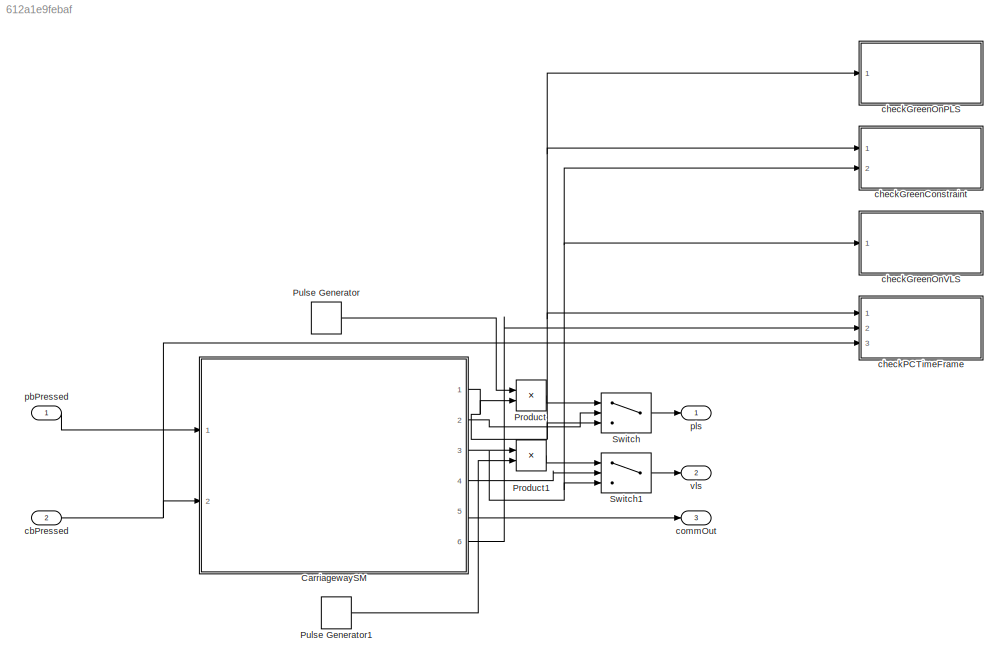
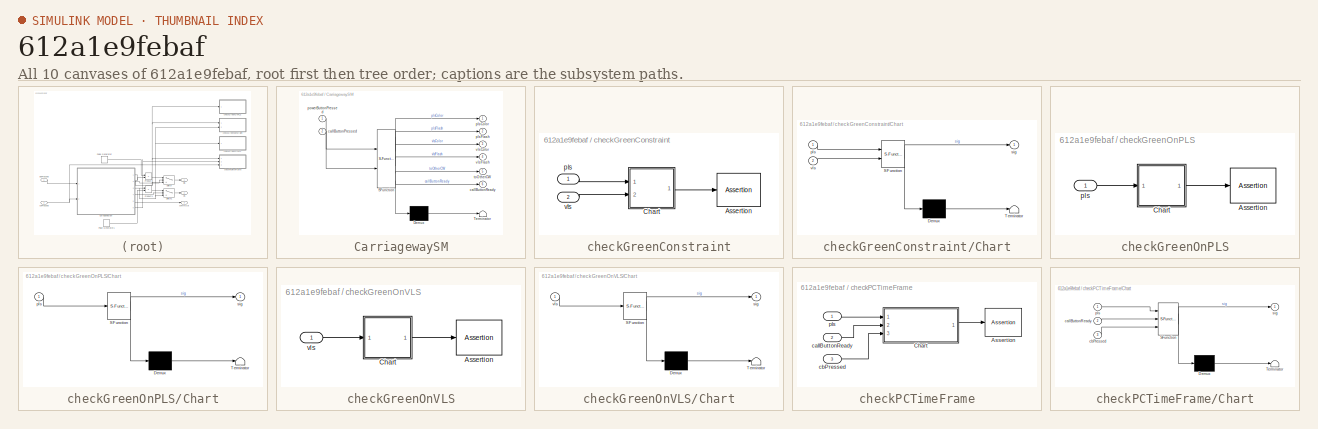
[diagram: thumbnail index - all 10 canvases of the model, root first then tree order]
MODEL slx_612a1e9febaf
KIND model
CONFIG AbsTol = auto
CONFIG EnableMultiTasking = off
CONFIG FixedStep = auto
CONFIG MaxStep = auto
CONFIG MinStep = auto
CONFIG RelTol = 1e-3
CONFIG SampleTimeConstraint = Unconstrained
CONFIG SolverName = FixedStepAuto
CONFIG StartTime = 0.0
CONFIG StopTime = 10.0
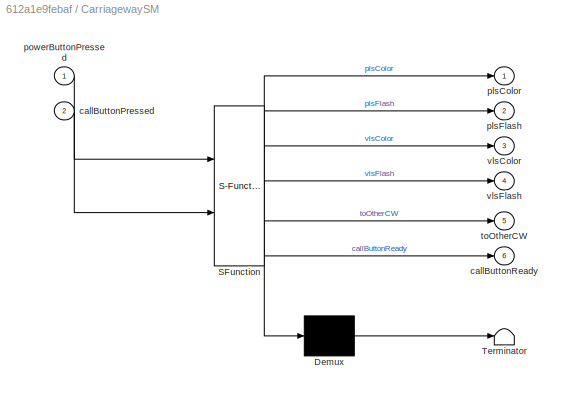
BLOCK [SubSystem] CarriagewaySM
  ErrorFcn = Stateflow.Translate.translate
  PermitHierarchicalResolution = ExplicitOnly
  Ports = [2, 6]
  RequestExecContextInheritance = off
  SFBlockType = Chart
  TreatAsAtomicUnit = on
BLOCK [Demux] CarriagewaySM/ Demux 
  Outputs = 1
  Ports = [1, 1]
BLOCK [S-Function] CarriagewaySM/ SFunction 
  EnableBusSupport = on
  FunctionName = sf_sfun
  PortCounts = [2 7]
  Ports = [2, 7]
  SFcnIsStateOwnerBlock = off
  SFunctionDeploymentMode = off
  Tag = Stateflow S-Function 3
BLOCK [Terminator] CarriagewaySM/ Terminator 
BLOCK [Inport] CarriagewaySM/callButtonPressed
  Port = 2
BLOCK [Outport] CarriagewaySM/callButtonReady
  Port = 6
BLOCK [Outport] CarriagewaySM/plsColor
BLOCK [Outport] CarriagewaySM/plsFlash
  Port = 2
BLOCK [Inport] CarriagewaySM/powerButtonPressed
BLOCK [Outport] CarriagewaySM/toOtherCW
  Port = 5
BLOCK [Outport] CarriagewaySM/vlsColor
  Port = 3
BLOCK [Outport] CarriagewaySM/vlsFlash
  Port = 4
BLOCK [Product] Product
  Ports = [2, 1]
BLOCK [Product] Product1
  Ports = [2, 1]
BLOCK [DiscretePulseGenerator] Pulse Generator
  Ports = [0, 1]
BLOCK [DiscretePulseGenerator] Pulse Generator1
  Ports = [0, 1]
BLOCK [Switch] Switch
  Criteria = u2 ~= 0
  InputSameDT = off
  SaturateOnIntegerOverflow = off
  Threshold = 1
BLOCK [Switch] Switch1
  Criteria = u2 ~= 0
  InputSameDT = off
  SaturateOnIntegerOverflow = off
  Threshold = 1
BLOCK [Inport] cbPressed
  Port = 2
BLOCK [SubSystem] checkGreenConstraint
  Ports = [2]
  RequestExecContextInheritance = off
BLOCK [Assertion] checkGreenConstraint/Assertion
BLOCK [SubSystem] checkGreenConstraint/Chart
  ErrorFcn = Stateflow.Translate.translate
  PermitHierarchicalResolution = ExplicitOnly
  Ports = [2, 1]
  RequestExecContextInheritance = off
  SFBlockType = Chart
  TreatAsAtomicUnit = on
BLOCK [Demux] checkGreenConstraint/Chart/ Demux 
  Outputs = 1
  Ports = [1, 1]
BLOCK [S-Function] checkGreenConstraint/Chart/ SFunction 
  EnableBusSupport = on
  FunctionName = sf_sfun
  PortCounts = [2 2]
  Ports = [2, 2]
  SFcnIsStateOwnerBlock = off
  SFunctionDeploymentMode = off
  Tag = Stateflow S-Function 6
BLOCK [Terminator] checkGreenConstraint/Chart/ Terminator 
BLOCK [Inport] checkGreenConstraint/Chart/pls
BLOCK [Outport] checkGreenConstraint/Chart/sig
BLOCK [Inport] checkGreenConstraint/Chart/vls
  Port = 2
BLOCK [Inport] checkGreenConstraint/pls
BLOCK [Inport] checkGreenConstraint/vls
  Port = 2
BLOCK [SubSystem] checkGreenOnPLS
  Ports = [1]
  RequestExecContextInheritance = off
BLOCK [Assertion] checkGreenOnPLS/Assertion
BLOCK [SubSystem] checkGreenOnPLS/Chart
  ErrorFcn = Stateflow.Translate.translate
  PermitHierarchicalResolution = ExplicitOnly
  Ports = [1, 1]
  RequestExecContextInheritance = off
  SFBlockType = Chart
  TreatAsAtomicUnit = on
BLOCK [Demux] checkGreenOnPLS/Chart/ Demux 
  Outputs = 1
  Ports = [1, 1]
BLOCK [S-Function] checkGreenOnPLS/Chart/ SFunction 
  EnableBusSupport = on
  FunctionName = sf_sfun
  PortCounts = [1 2]
  Ports = [1, 2]
  SFcnIsStateOwnerBlock = off
  SFunctionDeploymentMode = off
  Tag = Stateflow S-Function 2
BLOCK [Terminator] checkGreenOnPLS/Chart/ Terminator 
BLOCK [Inport] checkGreenOnPLS/Chart/pls
BLOCK [Outport] checkGreenOnPLS/Chart/sig
BLOCK [Inport] checkGreenOnPLS/pls
BLOCK [SubSystem] checkGreenOnVLS
  Ports = [1]
  RequestExecContextInheritance = off
BLOCK [Assertion] checkGreenOnVLS/Assertion
BLOCK [SubSystem] checkGreenOnVLS/Chart
  ErrorFcn = Stateflow.Translate.translate
  PermitHierarchicalResolution = ExplicitOnly
  Ports = [1, 1]
  RequestExecContextInheritance = off
  SFBlockType = Chart
  TreatAsAtomicUnit = on
BLOCK [Demux] checkGreenOnVLS/Chart/ Demux 
  Outputs = 1
  Ports = [1, 1]
BLOCK [S-Function] checkGreenOnVLS/Chart/ SFunction 
  EnableBusSupport = on
  FunctionName = sf_sfun
  PortCounts = [1 2]
  Ports = [1, 2]
  SFcnIsStateOwnerBlock = off
  SFunctionDeploymentMode = off
  Tag = Stateflow S-Function 4
BLOCK [Terminator] checkGreenOnVLS/Chart/ Terminator 
BLOCK [Outport] checkGreenOnVLS/Chart/sig
BLOCK [Inport] checkGreenOnVLS/Chart/vls
BLOCK [Inport] checkGreenOnVLS/vls
BLOCK [SubSystem] checkPCTimeFrame
  Ports = [3]
  RequestExecContextInheritance = off
BLOCK [Assertion] checkPCTimeFrame/Assertion
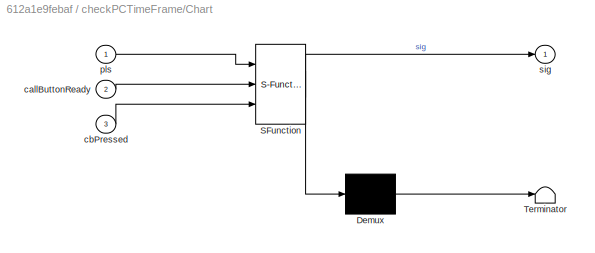
BLOCK [SubSystem] checkPCTimeFrame/Chart
  ErrorFcn = Stateflow.Translate.translate
  PermitHierarchicalResolution = ExplicitOnly
  Ports = [3, 1]
  RequestExecContextInheritance = off
  SFBlockType = Chart
  TreatAsAtomicUnit = on
BLOCK [Demux] checkPCTimeFrame/Chart/ Demux 
  Outputs = 1
  Ports = [1, 1]
BLOCK [S-Function] checkPCTimeFrame/Chart/ SFunction 
  EnableBusSupport = on
  FunctionName = sf_sfun
  PortCounts = [3 2]
  Ports = [3, 2]
  SFcnIsStateOwnerBlock = off
  SFunctionDeploymentMode = off
  Tag = Stateflow S-Function 5
BLOCK [Terminator] checkPCTimeFrame/Chart/ Terminator 
BLOCK [Inport] checkPCTimeFrame/Chart/callButtonReady
  Port = 2
BLOCK [Inport] checkPCTimeFrame/Chart/cbPressed
  Port = 3
BLOCK [Inport] checkPCTimeFrame/Chart/pls
BLOCK [Outport] checkPCTimeFrame/Chart/sig
BLOCK [Inport] checkPCTimeFrame/callButtonReady
  Port = 2
BLOCK [Inport] checkPCTimeFrame/cbPressed
  Port = 3
BLOCK [Inport] checkPCTimeFrame/pls
BLOCK [Outport] commOut
  Port = 3
BLOCK [Inport] pbPressed
BLOCK [Outport] pls
BLOCK [Outport] vls
  Port = 2
NET CarriagewaySM:1 -> Product:2, Switch:3, checkGreenConstraint:1, checkGreenOnPLS:1, checkPCTimeFrame:1
LINE CarriagewaySM:2 -> Switch:2
NET CarriagewaySM:3 -> Product1:1, Switch1:3, checkGreenConstraint:2, checkGreenOnVLS:1
LINE CarriagewaySM:4 -> Switch1:2
LINE CarriagewaySM:5 -> commOut:1
LINE CarriagewaySM:6 -> checkPCTimeFrame:2
LINE Product1:1 -> Switch1:1
LINE Product:1 -> Switch:1
LINE Pulse Generator1:1 -> Product1:2
LINE Pulse Generator:1 -> Product:1
LINE Switch1:1 -> vls:1
LINE Switch:1 -> pls:1
NET cbPressed:1 -> CarriagewaySM:2, checkPCTimeFrame:3
LINE checkGreenConstraint/Chart:1 -> checkGreenConstraint/Assertion:1
LINE checkGreenConstraint/pls:1 -> checkGreenConstraint/Chart:1
LINE checkGreenConstraint/vls:1 -> checkGreenConstraint/Chart:2
LINE checkGreenOnPLS/Chart:1 -> checkGreenOnPLS/Assertion:1
LINE checkGreenOnPLS/pls:1 -> checkGreenOnPLS/Chart:1
LINE checkGreenOnVLS/Chart:1 -> checkGreenOnVLS/Assertion:1
LINE checkGreenOnVLS/vls:1 -> checkGreenOnVLS/Chart:1
LINE checkPCTimeFrame/Chart:1 -> checkPCTimeFrame/Assertion:1
LINE checkPCTimeFrame/callButtonReady:1 -> checkPCTimeFrame/Chart:2
LINE checkPCTimeFrame/cbPressed:1 -> checkPCTimeFrame/Chart:3
LINE checkPCTimeFrame/pls:1 -> checkPCTimeFrame/Chart:1
LINE pbPressed:1 -> CarriagewaySM:1
note: NET lines group one-source signal fan-out (src -> all destinations, sorted); 1:1 wires keep LINE
CHART checkGreenOnPLS/Chart states=3 transitions=3
  STATE_LABEL 'handleAssertionEntry\nentry:\nsig = 1;'
  STATE_LABEL 'handleAssertionDuring\n'
  STATE_LABEL 'handleAssertionExit\nentry:\nsig = 0;'
CHART CarriagewaySM states=14 transitions=14
  STATE_LABEL 'VLS Color Code'
  STATE_LABEL 'Red => 1\nYellow => 2\nGreen => 3'
  STATE_LABEL 'Red => 1\nYellow => 2\nGreen => 3'
  STATE_LABEL 'on'
  STATE_LABEL 'vehiclesPassing\nentry:\nvlsColor = 3;\nvlsFlash = 0;\nplsColor = 1;\nplsFlash = 0;\non after(10, sec):\n     callButtonReady = 1;\n'
  STATE_LABEL 'vehiclesPassingReady\nentry:\nvlsColor = 2;\nvlsFlash = 0;\nplsColor = 1;\nplsFlash = 0;'
  STATE_LABEL 'vehiclesPassingSlowDown\nentry:\nvlsColor = 3;\nvlsFlash = 1;\nplsColor = 1;\nplsFlash = 0;\ncallButtonReady = 0;'
  STATE_LABEL 'pedestriansCrossingDone\nentry:\nvlsColor = 1;\nvlsFlash = 0;\nplsColor = 1;\nplsFlash = 0;\n'
  STATE_LABEL 'vehiclesPassingAlmostDone\nentry:\nvlsColor = 2;\nvlsFlash = 0;\nplsColor = 1;\nplsFlash = 0;\ntoOtherCW = 1;'
  STATE_LABEL 'pedestriansCrossingAlmostDone\nentry:\nvlsColor = 1;\nvlsFlash = 0;\nplsColor = 2;\nplsFlash = 1;'
  STATE_LABEL 'vehiclesPassingDone\nentry:\nvlsColor = 1;\nvlsFlash = 0;\nplsColor = 1;\nplsFlash = 0;\ntoOtherCW = 0;'
  STATE_LABEL 'pedestriansCrossing\nentry:\nvlsColor = 1;\nvlsFlash = 0;\nplsColor = 2;\nplsFlash = 0;'
  STATE_LABEL 'after(3, sec)'
  STATE_LABEL '[callButtonPressed && callButtonReady == 1]'
  STATE_LABEL 'after(3, sec)'
  STATE_LABEL 'after(5, sec)'
  STATE_LABEL 'after(5, sec)'
  STATE_LABEL 'after(3, sec)'
  STATE_LABEL 'after(10, sec)'
  STATE_LABEL 'after(3, sec)'
  STATE_LABEL 'vehiclesPassing\nentry:\nvlsColor = 3;\nvlsFlash = 0;\nplsColor = 1;\nplsFlash = 0;\non after(10, sec):\n     callButtonReady = 1;\n'
  STATE_LABEL 'vehiclesPassingReady\nentry:\nvlsColor = 2;\nvlsFlash = 0;\nplsColor = 1;\nplsFlash = 0;'
  STATE_LABEL 'vehiclesPassingSlowDown\nentry:\nvlsColor = 3;\nvlsFlash = 1;\nplsColor = 1;\nplsFlash = 0;\ncallButtonReady = 0;'
  STATE_LABEL 'pedestriansCrossingDone\nentry:\nvlsColor = 1;\nvlsFlash = 0;\nplsColor = 1;\nplsFlash = 0;\n'
  STATE_LABEL 'vehiclesPassingAlmostDone\nentry:\nvlsColor = 2;\nvlsFlash = 0;\nplsColor = 1;\nplsFlash = 0;\ntoOtherCW = 1;'
  STATE_LABEL 'pedestriansCrossingAlmostDone\nentry:\nvlsColor = 1;\nvlsFlash = 0;\nplsColor = 2;\nplsFlash = 1;'
  STATE_LABEL 'vehiclesPassingDone\nentry:\nvlsColor = 1;\nvlsFlash = 0;\nplsColor = 1;\nplsFlash = 0;\ntoOtherCW = 0;'
  STATE_LABEL 'pedestriansCrossing\nentry:\nvlsColor = 1;\nvlsFlash = 0;\nplsColor = 2;\nplsFlash = 0;'
  STATE_LABEL 'PLS Color Code'
  STATE_LABEL 'Red => 1\nGreen => 2'
  STATE_LABEL 'Red => 1\nGreen => 2'
  STATE_LABEL 'off\nentry:\nvlsColor = 0;\nvlsFlash = 0;\nplsColor = 0;\nplsFlash = 0;\nduring:\ntimer = timer + 1;'
CHART checkGreenOnVLS/Chart states=3 transitions=3
  STATE_LABEL 'handleAssertionEntry\nentry:\nsig = 1;'
  STATE_LABEL 'handleAssertionDuring\n'
  STATE_LABEL 'handleAssertionExit\nentry:\nsig = 0;'
CHART checkPCTimeFrame/Chart states=3 transitions=5
  STATE_LABEL 'handleAssertionEntry\nentry:\nsig = 1;\ntimer = 0;'
  STATE_LABEL 'handleAssertionDuring\nduring:\ntimer = timer + 1;'
  STATE_LABEL 'handleAssertionExit\nentry:\nsig = 0;'
CHART checkGreenConstraint/Chart states=2 transitions=2
  STATE_LABEL 'handleAssertionEntry\nentry:\nsig = 1;'
  STATE_LABEL 'handleAssertionDuring\nsig = 0;'
CHART  states=0 transitions=0
CHART  states=0 transitions=0
CHART  states=0 transitions=0
CHART  states=0 transitions=0
CHART  states=0 transitions=0
